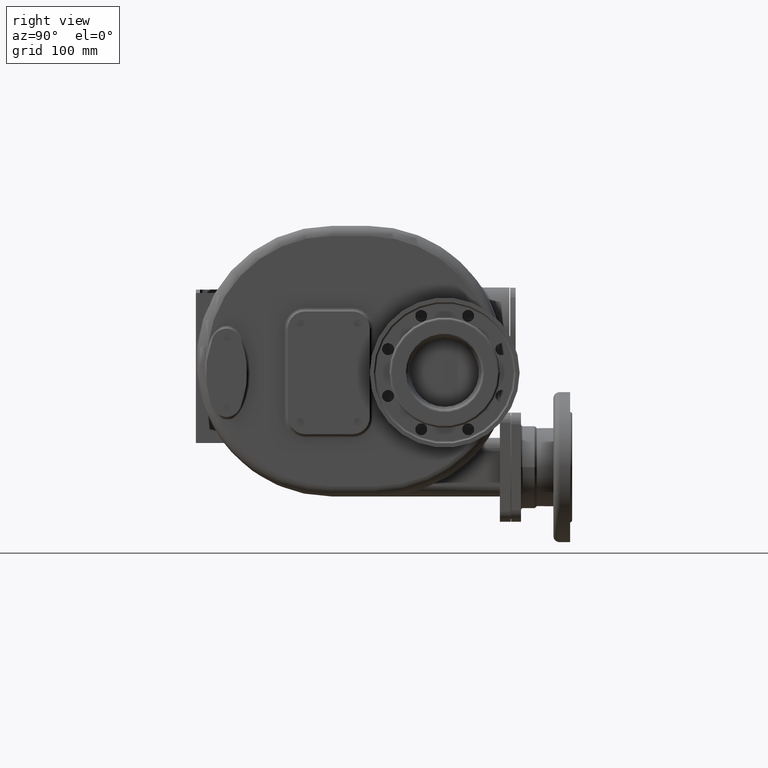
[diagram: clean part render]
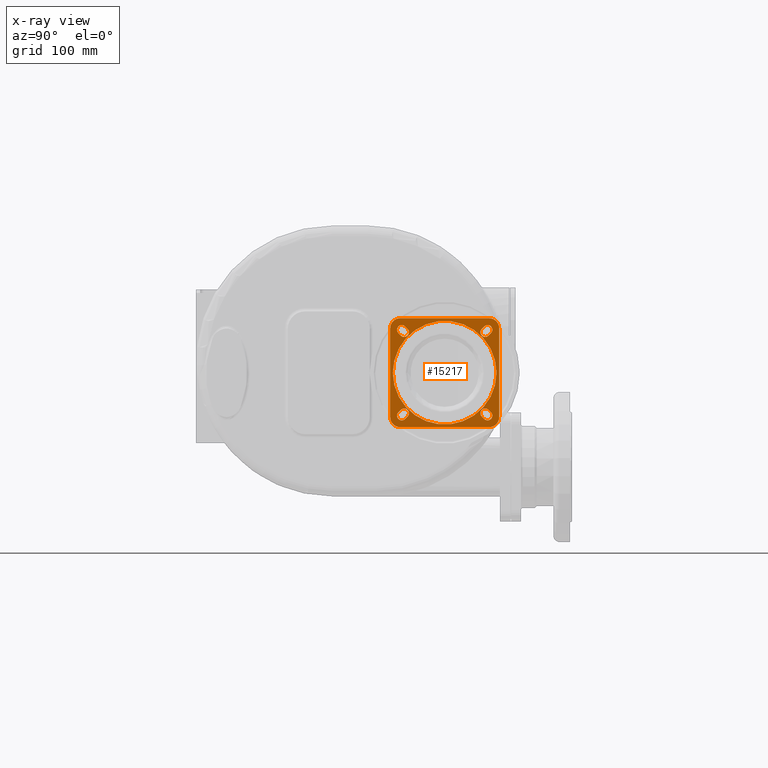
[diagram: x-ray — body ghosted, one internal face saturated and labeled with its STEP entity id]
A machine part, right view, then the same camera in x-ray: the body is ghosted and one INTERNAL B-rep face — a face not visible from any outside direction — is saturated and labeled: STEP entity #15217.
In plain terms, the highlighted planar face has unit normal (1, 0, 0).
Its self-contained STEP definition (entity closure, byte-faithful):
#1411=CARTESIAN_POINT('',(2.08E2,3.E2,4.8E1));
#1412=DIRECTION('',(1.E0,0.E0,0.E0));
#1413=DIRECTION('',(0.E0,0.E0,1.E0));
#1414=AXIS2_PLACEMENT_3D('',#1411,#1412,#1413);
#1416=DIRECTION('',(0.E0,-1.E0,0.E0));
#1417=VECTOR('',#1416,1.3E2);
#1418=CARTESIAN_POINT('',(2.08E2,4.3E2,6.3E1));
#1419=LINE('',#1418,#1417);
#1420=CARTESIAN_POINT('',(2.08E2,4.3E2,4.8E1));
#1421=DIRECTION('',(1.E0,0.E0,0.E0));
#1422=DIRECTION('',(0.E0,1.E0,0.E0));
#1423=AXIS2_PLACEMENT_3D('',#1420,#1421,#1422);
#1425=DIRECTION('',(0.E0,0.E0,1.E0));
#1426=VECTOR('',#1425,1.3E2);
#1427=CARTESIAN_POINT('',(2.08E2,4.45E2,-8.2E1));
#1428=LINE('',#1427,#1426);
#1429=CARTESIAN_POINT('',(2.08E2,4.3E2,-8.2E1));
#1430=DIRECTION('',(1.E0,0.E0,0.E0));
#1431=DIRECTION('',(0.E0,0.E0,-1.E0));
#1432=AXIS2_PLACEMENT_3D('',#1429,#1430,#1431);
#1434=DIRECTION('',(0.E0,1.E0,0.E0));
#1435=VECTOR('',#1434,1.3E2);
#1436=CARTESIAN_POINT('',(2.08E2,3.E2,-9.7E1));
#1437=LINE('',#1436,#1435);
#1438=CARTESIAN_POINT('',(2.08E2,3.E2,-8.2E1));
#1439=DIRECTION('',(1.E0,0.E0,0.E0));
#1440=DIRECTION('',(0.E0,-1.E0,0.E0));
#1441=AXIS2_PLACEMENT_3D('',#1438,#1439,#1440);
#1443=DIRECTION('',(0.E0,0.E0,-1.E0));
#1444=VECTOR('',#1443,1.3E2);
#1445=CARTESIAN_POINT('',(2.08E2,2.85E2,4.8E1));
#1446=LINE('',#1445,#1444);
#1447=CARTESIAN_POINT('',(2.08E2,4.243969696197E2,4.239696961967E1));
#1448=DIRECTION('',(1.E0,0.E0,0.E0));
#1449=DIRECTION('',(0.E0,-7.071067811866E-1,7.071067811865E-1));
#1450=AXIS2_PLACEMENT_3D('',#1447,#1448,#1449);
#1452=DIRECTION('',(0.E0,7.071067811865E-1,7.071067811866E-1));
#1453=VECTOR('',#1452,5.E0);
#1454=CARTESIAN_POINT('',(2.08E2,4.293467170880E2,3.744722215136E1));
#1455=LINE('',#1454,#1453);
#1456=DIRECTION('',(0.E0,-7.071067811866E-1,-7.071067811865E-1));
#1457=VECTOR('',#1456,5.E0);
#1458=CARTESIAN_POINT('',(2.08E2,4.229827560573E2,5.088225099391E1));
#1459=LINE('',#1458,#1457);
#1460=CARTESIAN_POINT('',(2.08E2,4.243969696197E2,-7.639696961967E1));
#1461=DIRECTION('',(1.E0,0.E0,0.E0));
#1462=DIRECTION('',(0.E0,7.071067811865E-1,7.071067811865E-1));
#1463=AXIS2_PLACEMENT_3D('',#1460,#1461,#1462);
#1465=DIRECTION('',(0.E0,7.071067811865E-1,-7.071067811866E-1));
#1466=VECTOR('',#1465,5.E0);
#1467=CARTESIAN_POINT('',(2.08E2,4.194472221514E2,-8.134671708798E1));
#1468=LINE('',#1467,#1466);
#1469=DIRECTION('',(0.E0,-7.071067811866E-1,7.071067811865E-1));
#1470=VECTOR('',#1469,5.E0);
#1471=CARTESIAN_POINT('',(2.08E2,4.328822509939E2,-7.498275605730E1));
#1472=LINE('',#1471,#1470);
#1473=CARTESIAN_POINT('',(2.08E2,3.056030303803E2,-7.639696961967E1));
#1474=DIRECTION('',(1.E0,0.E0,0.E0));
#1475=DIRECTION('',(0.E0,7.071067811865E-1,-7.071067811866E-1));
#1476=AXIS2_PLACEMENT_3D('',#1473,#1474,#1475);
#1478=DIRECTION('',(0.E0,-7.071067811866E-1,-7.071067811865E-1));
#1479=VECTOR('',#1478,5.E0);
#1480=CARTESIAN_POINT('',(2.08E2,3.006532829120E2,-7.144722215136E1));
#1481=LINE('',#1480,#1479);
#1482=DIRECTION('',(0.E0,7.071067811865E-1,7.071067811866E-1));
#1483=VECTOR('',#1482,5.E0);
#1484=CARTESIAN_POINT('',(2.08E2,3.070172439427E2,-8.488225099391E1));
#1485=LINE('',#1484,#1483);
#1486=CARTESIAN_POINT('',(2.08E2,3.056030303803E2,4.239696961967E1));
#1487=DIRECTION('',(1.E0,0.E0,0.E0));
#1488=DIRECTION('',(0.E0,-7.071067811866E-1,-7.071067811865E-1));
#1489=AXIS2_PLACEMENT_3D('',#1486,#1487,#1488);
#1491=DIRECTION('',(0.E0,-7.071067811865E-1,7.071067811866E-1));
#1492=VECTOR('',#1491,5.E0);
#1493=CARTESIAN_POINT('',(2.08E2,3.105527778486E2,4.734671708798E1));
#1494=LINE('',#1493,#1492);
#1495=DIRECTION('',(0.E0,7.071067811866E-1,-7.071067811865E-1));
#1496=VECTOR('',#1495,5.E0);
#1497=CARTESIAN_POINT('',(2.08E2,2.971177490061E2,4.098275605730E1));
#1498=LINE('',#1497,#1496);
#1499=CARTESIAN_POINT('',(2.08E2,3.65E2,-1.7E1));
#1500=DIRECTION('',(1.E0,0.E0,0.E0));
#1501=DIRECTION('',(0.E0,1.E0,0.E0));
#1502=AXIS2_PLACEMENT_3D('',#1499,#1500,#1501);
#1504=CARTESIAN_POINT('',(2.08E2,3.65E2,-1.7E1));
#1505=DIRECTION('',(1.E0,0.E0,0.E0));
#1506=DIRECTION('',(0.E0,-1.E0,0.E0));
#1507=AXIS2_PLACEMENT_3D('',#1504,#1505,#1506);
#1591=CARTESIAN_POINT('',(2.08E2,4.279325035256E2,4.593250352560E1));
#1592=DIRECTION('',(-1.E0,0.E0,0.E0));
#1593=DIRECTION('',(0.E0,-7.071067811865E-1,7.071067811866E-1));
#1594=AXIS2_PLACEMENT_3D('',#1591,#1592,#1593);
#1686=CARTESIAN_POINT('',(2.08E2,4.279325035256E2,-7.993250352560E1));
#1687=DIRECTION('',(-1.E0,0.E0,0.E0));
#1688=DIRECTION('',(0.E0,7.071067811865E-1,7.071067811865E-1));
#1689=AXIS2_PLACEMENT_3D('',#1686,#1687,#1688);
#1781=CARTESIAN_POINT('',(2.08E2,3.020674964744E2,-7.993250352560E1));
#1782=DIRECTION('',(-1.E0,0.E0,0.E0));
#1783=DIRECTION('',(0.E0,7.071067811865E-1,-7.071067811865E-1));
#1784=AXIS2_PLACEMENT_3D('',#1781,#1782,#1783);
#1876=CARTESIAN_POINT('',(2.08E2,3.020674964744E2,4.593250352560E1));
#1877=DIRECTION('',(-1.E0,0.E0,0.E0));
#1878=DIRECTION('',(0.E0,-7.071067811865E-1,-7.071067811865E-1));
#1879=AXIS2_PLACEMENT_3D('',#1876,#1877,#1878);
#12479=CARTESIAN_POINT('',(2.08E2,3.E2,6.3E1));
#12480=VERTEX_POINT('',#12479);
#12481=CARTESIAN_POINT('',(2.08E2,2.85E2,4.8E1));
#12482=VERTEX_POINT('',#12481);
#12487=CARTESIAN_POINT('',(2.08E2,4.45E2,4.8E1));
#12488=VERTEX_POINT('',#12487);
#12489=CARTESIAN_POINT('',(2.08E2,4.3E2,6.3E1));
#12490=VERTEX_POINT('',#12489);
#12495=CARTESIAN_POINT('',(2.08E2,2.85E2,-8.2E1));
#12496=VERTEX_POINT('',#12495);
#12497=CARTESIAN_POINT('',(2.08E2,3.E2,-9.7E1));
#12498=VERTEX_POINT('',#12497);
#12499=CARTESIAN_POINT('',(2.08E2,4.3E2,-9.7E1));
#12500=VERTEX_POINT('',#12499);
#12501=CARTESIAN_POINT('',(2.08E2,4.45E2,-8.2E1));
#12502=VERTEX_POINT('',#12501);
#12507=CARTESIAN_POINT('',(2.08E2,4.194472221514E2,4.734671708798E1));
#12508=CARTESIAN_POINT('',(2.08E2,4.293467170880E2,3.744722215136E1));
#12509=VERTEX_POINT('',#12507);
#12510=VERTEX_POINT('',#12508);
#12511=CARTESIAN_POINT('',(2.08E2,4.328822509939E2,4.098275605730E1));
#12512=VERTEX_POINT('',#12511);
#12513=CARTESIAN_POINT('',(2.08E2,4.229827560573E2,5.088225099391E1));
#12514=VERTEX_POINT('',#12513);
#12515=CARTESIAN_POINT('',(2.08E2,4.293467170880E2,-7.144722215136E1));
#12516=CARTESIAN_POINT('',(2.08E2,4.194472221514E2,-8.134671708798E1));
#12517=VERTEX_POINT('',#12515);
#12518=VERTEX_POINT('',#12516);
#12519=CARTESIAN_POINT('',(2.08E2,4.229827560573E2,-8.488225099391E1));
#12520=VERTEX_POINT('',#12519);
#12521=CARTESIAN_POINT('',(2.08E2,4.328822509939E2,-7.498275605730E1));
#12522=VERTEX_POINT('',#12521);
#12523=CARTESIAN_POINT('',(2.08E2,3.105527778486E2,-8.134671708798E1));
#12524=CARTESIAN_POINT('',(2.08E2,3.006532829120E2,-7.144722215136E1));
#12525=VERTEX_POINT('',#12523);
#12526=VERTEX_POINT('',#12524);
#12527=CARTESIAN_POINT('',(2.08E2,2.971177490061E2,-7.498275605730E1));
#12528=VERTEX_POINT('',#12527);
#12529=CARTESIAN_POINT('',(2.08E2,3.070172439427E2,-8.488225099391E1));
#12530=VERTEX_POINT('',#12529);
#12531=CARTESIAN_POINT('',(2.08E2,3.006532829120E2,3.744722215136E1));
#12532=CARTESIAN_POINT('',(2.08E2,3.105527778486E2,4.734671708798E1));
#12533=VERTEX_POINT('',#12531);
#12534=VERTEX_POINT('',#12532);
#12535=CARTESIAN_POINT('',(2.08E2,3.070172439427E2,5.088225099391E1));
#12536=VERTEX_POINT('',#12535);
#12537=CARTESIAN_POINT('',(2.08E2,2.971177490061E2,4.098275605730E1));
#12538=VERTEX_POINT('',#12537);
#12879=CARTESIAN_POINT('',(2.08E2,4.41E2,-1.7E1));
#12880=CARTESIAN_POINT('',(2.08E2,2.89E2,-1.7E1));
#12881=VERTEX_POINT('',#12879);
#12882=VERTEX_POINT('',#12880);
#15153=CARTESIAN_POINT('',(2.08E2,3.65E2,-1.7E1));
#15154=DIRECTION('',(1.E0,0.E0,0.E0));
#15155=DIRECTION('',(0.E0,1.E0,0.E0));
#15156=AXIS2_PLACEMENT_3D('',#15153,#15154,#15155);
#15157=PLANE('',#15156);
#15159=ORIENTED_EDGE('',*,*,#15158,.F.);
#15160=ORIENTED_EDGE('',*,*,#15128,.F.);
#15161=ORIENTED_EDGE('',*,*,#15147,.F.);
#15162=ORIENTED_EDGE('',*,*,#14971,.F.);
#15164=ORIENTED_EDGE('',*,*,#15163,.F.);
#15165=ORIENTED_EDGE('',*,*,#15024,.F.);
#15167=ORIENTED_EDGE('',*,*,#15166,.F.);
#15168=ORIENTED_EDGE('',*,*,#15077,.F.);
#15169=EDGE_LOOP('',(#15159,#15160,#15161,#15162,#15164,#15165,#15167,#15168));
#15170=FACE_OUTER_BOUND('',#15169,.F.);
#15172=ORIENTED_EDGE('',*,*,#15171,.T.);
#15174=ORIENTED_EDGE('',*,*,#15173,.T.);
#15176=ORIENTED_EDGE('',*,*,#15175,.F.);
#15178=ORIENTED_EDGE('',*,*,#15177,.T.);
#15179=EDGE_LOOP('',(#15172,#15174,#15176,#15178));
#15180=FACE_BOUND('',#15179,.F.);
#15182=ORIENTED_EDGE('',*,*,#15181,.T.);
#15184=ORIENTED_EDGE('',*,*,#15183,.T.);
#15186=ORIENTED_EDGE('',*,*,#15185,.F.);
#15188=ORIENTED_EDGE('',*,*,#15187,.T.);
#15189=EDGE_LOOP('',(#15182,#15184,#15186,#15188));
#15190=FACE_BOUND('',#15189,.F.);
#15192=ORIENTED_EDGE('',*,*,#15191,.T.);
#15194=ORIENTED_EDGE('',*,*,#15193,.T.);
#15196=ORIENTED_EDGE('',*,*,#15195,.F.);
#15198=ORIENTED_EDGE('',*,*,#15197,.T.);
#15199=EDGE_LOOP('',(#15192,#15194,#15196,#15198));
#15200=FACE_BOUND('',#15199,.F.);
#15202=ORIENTED_EDGE('',*,*,#15201,.T.);
#15204=ORIENTED_EDGE('',*,*,#15203,.T.);
#15206=ORIENTED_EDGE('',*,*,#15205,.F.);
#15208=ORIENTED_EDGE('',*,*,#15207,.T.);
#15209=EDGE_LOOP('',(#15202,#15204,#15206,#15208));
#15210=FACE_BOUND('',#15209,.F.);
#15212=ORIENTED_EDGE('',*,*,#15211,.T.);
#15214=ORIENTED_EDGE('',*,*,#15213,.T.);
#15215=EDGE_LOOP('',(#15212,#15214));
#15216=FACE_BOUND('',#15215,.F.);
#15217=ADVANCED_FACE('',(#15170,#15180,#15190,#15200,#15210,#15216),#15157,.T.);
#1415=CIRCLE('',#1414,1.5E1);
#1424=CIRCLE('',#1423,1.5E1);
#1433=CIRCLE('',#1432,1.5E1);
#1442=CIRCLE('',#1441,1.5E1);
#1451=CIRCLE('',#1450,7.E0);
#1464=CIRCLE('',#1463,7.E0);
#1477=CIRCLE('',#1476,7.E0);
#1490=CIRCLE('',#1489,7.E0);
#1503=CIRCLE('',#1502,7.6E1);
#1508=CIRCLE('',#1507,7.6E1);
#1595=CIRCLE('',#1594,7.E0);
#1690=CIRCLE('',#1689,7.E0);
#1785=CIRCLE('',#1784,7.E0);
#1880=CIRCLE('',#1879,7.E0);
#14971=EDGE_CURVE('',#12502,#12488,#1428,.T.);
#15024=EDGE_CURVE('',#12498,#12500,#1437,.T.);
#15077=EDGE_CURVE('',#12482,#12496,#1446,.T.);
#15128=EDGE_CURVE('',#12490,#12480,#1419,.T.);
#15147=EDGE_CURVE('',#12488,#12490,#1424,.T.);
#15158=EDGE_CURVE('',#12480,#12482,#1415,.T.);
#15163=EDGE_CURVE('',#12500,#12502,#1433,.T.);
#15166=EDGE_CURVE('',#12496,#12498,#1442,.T.);
#15171=EDGE_CURVE('',#12509,#12510,#1451,.T.);
#15173=EDGE_CURVE('',#12510,#12512,#1455,.T.);
#15175=EDGE_CURVE('',#12514,#12512,#1595,.T.);
#15177=EDGE_CURVE('',#12514,#12509,#1459,.T.);
#15181=EDGE_CURVE('',#12517,#12518,#1464,.T.);
#15183=EDGE_CURVE('',#12518,#12520,#1468,.T.);
#15185=EDGE_CURVE('',#12522,#12520,#1690,.T.);
#15187=EDGE_CURVE('',#12522,#12517,#1472,.T.);
#15191=EDGE_CURVE('',#12525,#12526,#1477,.T.);
#15193=EDGE_CURVE('',#12526,#12528,#1481,.T.);
#15195=EDGE_CURVE('',#12530,#12528,#1785,.T.);
#15197=EDGE_CURVE('',#12530,#12525,#1485,.T.);
#15201=EDGE_CURVE('',#12533,#12534,#1490,.T.);
#15203=EDGE_CURVE('',#12534,#12536,#1494,.T.);
#15205=EDGE_CURVE('',#12538,#12536,#1880,.T.);
#15207=EDGE_CURVE('',#12538,#12533,#1498,.T.);
#15211=EDGE_CURVE('',#12881,#12882,#1503,.T.);
#15213=EDGE_CURVE('',#12882,#12881,#1508,.T.);